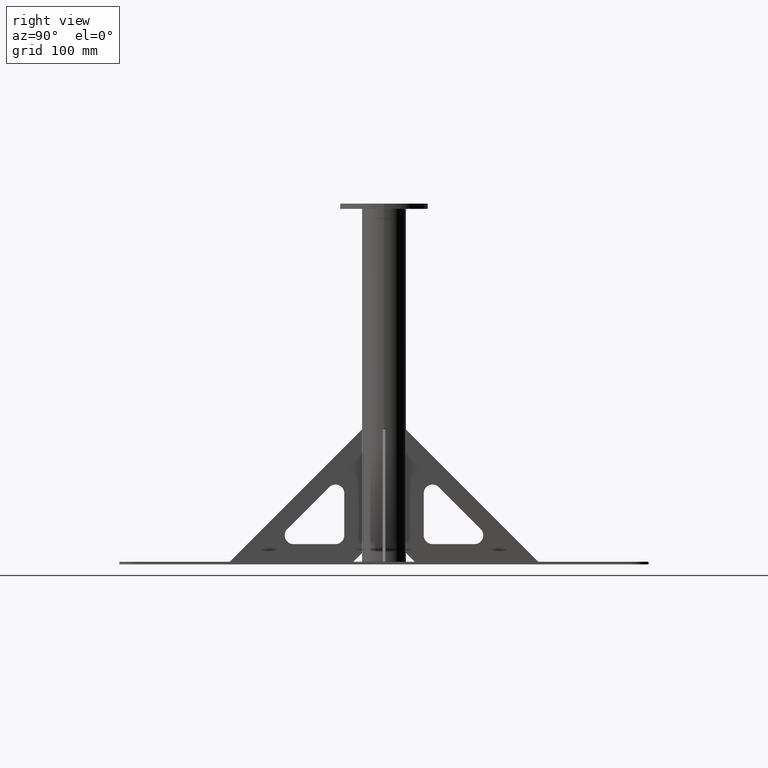
[diagram: clean part render]
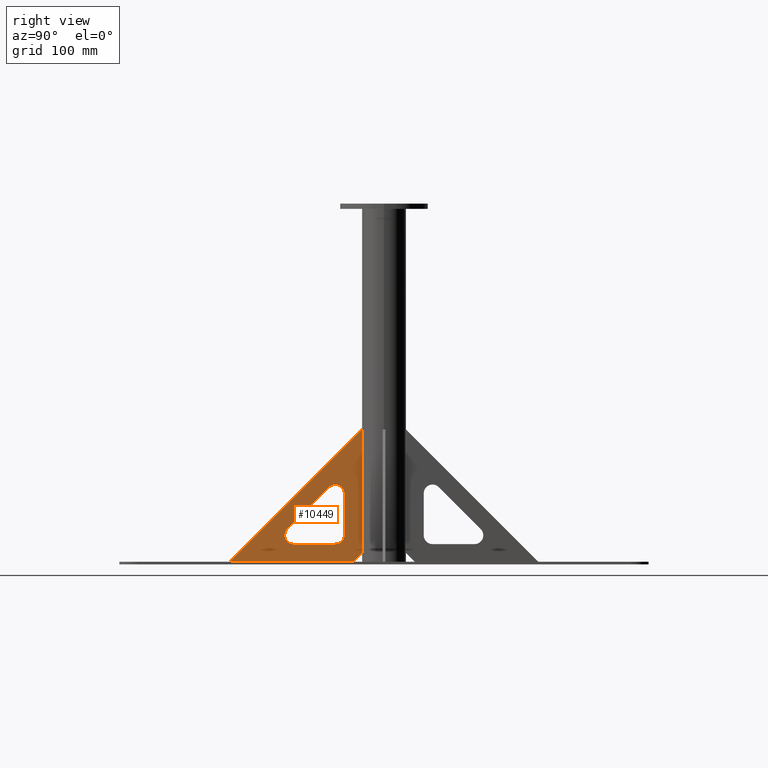
[diagram: same view with one face highlighted and labeled with its STEP entity id]
A machine part, right view. The second image highlights one B-rep face of the part: STEP entity #10449.
In plain terms, the highlighted planar face has unit normal (-1, -0, 0).
Its self-contained STEP definition (entity closure, byte-faithful):
#296 = DIRECTION ( 'NONE',  ( -1.000000000000000000, 0.0000000000000000000, 0.0000000000000000000 ) ) ;
#434 = CARTESIAN_POINT ( 'NONE',  ( 62.42640687119286700, 30.00000000000000000, 0.0000000000000000000 ) ) ;
#882 = VERTEX_POINT ( 'NONE', #434 ) ;
#1189 = CARTESIAN_POINT ( 'NONE',  ( 130.0000000000000000, 30.00000000000000000, 0.0000000000000000000 ) ) ;
#1297 = FACE_BOUND ( 'NONE', #12942, .T. ) ;
#1546 = VERTEX_POINT ( 'NONE', #1189 ) ;
#1605 = EDGE_CURVE ( 'NONE', #9735, #13006, #14702, .T. ) ;
#2069 = AXIS2_PLACEMENT_3D ( 'NONE', #20422, #10320, #296 ) ;
#2304 = ORIENTED_EDGE ( 'NONE', *, *, #20500, .T. ) ;
#2400 = VERTEX_POINT ( 'NONE', #20865 ) ;
#2554 = CARTESIAN_POINT ( 'NONE',  ( 119.9999999999999400, 20.00000000000000000, 0.0000000000000000000 ) ) ;
#2594 = AXIS2_PLACEMENT_3D ( 'NONE', #14999, #4963, #16711 ) ;
#2598 = VECTOR ( 'NONE', #18078, 1000.000000000000100 ) ;
#2680 = EDGE_CURVE ( 'NONE', #2400, #8970, #13401, .T. ) ;
#2916 = VERTEX_POINT ( 'NONE', #17038 ) ;
#3039 = VECTOR ( 'NONE', #11600, 1000.000000000000100 ) ;
#3149 = CARTESIAN_POINT ( 'NONE',  ( 72.42640687119310900, 20.00000000000000000, 0.0000000000000000000 ) ) ;
#3555 = LINE ( 'NONE', #20005, #3039 ) ;
#3584 = CARTESIAN_POINT ( 'NONE',  ( 139.9999999999999700, 0.0000000000000000000, 0.0000000000000000000 ) ) ;
#4317 = ORIENTED_EDGE ( 'NONE', *, *, #9030, .T. ) ;
#4430 = DIRECTION ( 'NONE',  ( 1.000000000000000000, 0.0000000000000000000, -0.0000000000000000000 ) ) ;
#4754 = ORIENTED_EDGE ( 'NONE', *, *, #17911, .F. ) ;
#4963 = DIRECTION ( 'NONE',  ( 0.0000000000000000000, 0.0000000000000000000, 1.000000000000000000 ) ) ;
#5030 = LINE ( 'NONE', #8949, #8458 ) ;
#5031 = EDGE_CURVE ( 'NONE', #6281, #8770, #3555, .T. ) ;
#5181 = AXIS2_PLACEMENT_3D ( 'NONE', #18722, #8641, #20414 ) ;
#5323 = CARTESIAN_POINT ( 'NONE',  ( 65.35533905932756200, 37.07106781186564600, 0.0000000000000000000 ) ) ;
#6281 = VERTEX_POINT ( 'NONE', #19359 ) ;
#6594 = ORIENTED_EDGE ( 'NONE', *, *, #14713, .F. ) ;
#6732 = CIRCLE ( 'NONE', #5181, 10.00000000000000900 ) ;
#6752 = CARTESIAN_POINT ( 'NONE',  ( 130.0000000000000000, 77.57359312880690500, 0.0000000000000000000 ) ) ;
#7016 = EDGE_CURVE ( 'NONE', #8970, #2916, #7047, .T. ) ;
#7046 = LINE ( 'NONE', #20170, #19940 ) ;
#7047 = LINE ( 'NONE', #9589, #2598 ) ;
#7284 = DIRECTION ( 'NONE',  ( 1.000000000000000000, 0.0000000000000000000, 0.0000000000000000000 ) ) ;
#7878 = VERTEX_POINT ( 'NONE', #3584 ) ;
#8054 = CARTESIAN_POINT ( 'NONE',  ( 130.0000000000000000, 30.00000000000007100, 0.0000000000000000000 ) ) ;
#8091 = CARTESIAN_POINT ( 'NONE',  ( 150.0000000000000000, 10.00000000000000000, 0.0000000000000000000 ) ) ;
#8264 = ORIENTED_EDGE ( 'NONE', *, *, #2680, .F. ) ;
#8457 = ORIENTED_EDGE ( 'NONE', *, *, #12773, .T. ) ;
#8458 = VECTOR ( 'NONE', #7284, 1000.000000000000000 ) ;
#8476 = DIRECTION ( 'NONE',  ( 0.7071067811865479100, 0.7071067811865472400, -0.0000000000000000000 ) ) ;
#8641 = DIRECTION ( 'NONE',  ( 0.0000000000000000000, 0.0000000000000000000, 1.000000000000000000 ) ) ;
#8645 = EDGE_CURVE ( 'NONE', #13006, #1546, #18449, .T. ) ;
#8770 = VERTEX_POINT ( 'NONE', #5323 ) ;
#8949 = CARTESIAN_POINT ( 'NONE',  ( 0.0000000000000000000, 0.0000000000000000000, 0.0000000000000000000 ) ) ;
#8970 = VERTEX_POINT ( 'NONE', #14414 ) ;
#9030 = EDGE_CURVE ( 'NONE', #882, #9735, #16034, .T. ) ;
#9391 = ORIENTED_EDGE ( 'NONE', *, *, #5031, .T. ) ;
#9562 = DIRECTION ( 'NONE',  ( 0.0000000000000000000, 0.0000000000000000000, 1.000000000000000000 ) ) ;
#9589 = CARTESIAN_POINT ( 'NONE',  ( 150.0000000000000000, 150.0000000000000000, 0.0000000000000000000 ) ) ;
#9735 = VERTEX_POINT ( 'NONE', #3149 ) ;
#10233 = VECTOR ( 'NONE', #14102, 1000.000000000000000 ) ;
#10320 = DIRECTION ( 'NONE',  ( 0.0000000000000000000, 0.0000000000000000000, 1.000000000000000000 ) ) ;
#10449 = ADVANCED_FACE ( 'NONE', ( #15190, #1297 ), #16092, .F. ) ;
#11107 = EDGE_LOOP ( 'NONE', ( #6594, #19529, #8264, #4754 ) ) ;
#11600 = DIRECTION ( 'NONE',  ( -0.7071067811865474600, -0.7071067811865474600, 0.0000000000000000000 ) ) ;
#12478 = VECTOR ( 'NONE', #13123, 1000.000000000000000 ) ;
#12773 = EDGE_CURVE ( 'NONE', #19538, #6281, #6732, .T. ) ;
#12817 = CARTESIAN_POINT ( 'NONE',  ( 0.0000000000000000000, 0.0000000000000000000, 0.0000000000000000000 ) ) ;
#12942 = EDGE_LOOP ( 'NONE', ( #13243, #4317, #13938, #20933, #2304, #8457, #9391 ) ) ;
#13006 = VERTEX_POINT ( 'NONE', #2554 ) ;
#13123 = DIRECTION ( 'NONE',  ( 0.0000000000000000000, 1.000000000000000000, 0.0000000000000000000 ) ) ;
#13243 = ORIENTED_EDGE ( 'NONE', *, *, #15121, .T. ) ;
#13401 = LINE ( 'NONE', #8091, #17363 ) ;
#13938 = ORIENTED_EDGE ( 'NONE', *, *, #1605, .T. ) ;
#14102 = DIRECTION ( 'NONE',  ( 1.000000000000000000, 0.0000000000000000000, 0.0000000000000000000 ) ) ;
#14414 = CARTESIAN_POINT ( 'NONE',  ( 150.0000000000000000, 150.0000000000000000, 0.0000000000000000000 ) ) ;
#14475 = DIRECTION ( 'NONE',  ( 0.0000000000000000000, 0.0000000000000000000, 1.000000000000000000 ) ) ;
#14702 = LINE ( 'NONE', #20778, #10233 ) ;
#14713 = EDGE_CURVE ( 'NONE', #2916, #7878, #5030, .T. ) ;
#14964 = AXIS2_PLACEMENT_3D ( 'NONE', #12817, #14475, #4430 ) ;
#14977 = CIRCLE ( 'NONE', #2069, 10.00000000000000200 ) ;
#14999 = CARTESIAN_POINT ( 'NONE',  ( 120.0000000000000100, 30.00000000000000000, 0.0000000000000000000 ) ) ;
#15121 = EDGE_CURVE ( 'NONE', #8770, #882, #14977, .T. ) ;
#15190 = FACE_OUTER_BOUND ( 'NONE', #11107, .T. ) ;
#16034 = CIRCLE ( 'NONE', #17949, 10.00000000000000200 ) ;
#16092 = PLANE ( 'NONE',  #14964 ) ;
#16453 = DIRECTION ( 'NONE',  ( 0.0000000000000000000, 1.000000000000000000, 0.0000000000000000000 ) ) ;
#16711 = DIRECTION ( 'NONE',  ( 1.000000000000000000, 0.0000000000000000000, 0.0000000000000000000 ) ) ;
#17038 = CARTESIAN_POINT ( 'NONE',  ( 0.0000000000000000000, 0.0000000000000000000, 0.0000000000000000000 ) ) ;
#17363 = VECTOR ( 'NONE', #16453, 1000.000000000000000 ) ;
#17490 = LINE ( 'NONE', #8054, #12478 ) ;
#17911 = EDGE_CURVE ( 'NONE', #7878, #2400, #7046, .T. ) ;
#17949 = AXIS2_PLACEMENT_3D ( 'NONE', #19657, #9562, #21332 ) ;
#18078 = DIRECTION ( 'NONE',  ( -0.7071067811865474600, -0.7071067811865474600, 0.0000000000000000000 ) ) ;
#18449 = CIRCLE ( 'NONE', #2594, 9.999999999999994700 ) ;
#18722 = CARTESIAN_POINT ( 'NONE',  ( 120.0000000000000000, 77.57359312880714700, 0.0000000000000000000 ) ) ;
#19359 = CARTESIAN_POINT ( 'NONE',  ( 112.9289321881343500, 84.64466094067245200, 0.0000000000000000000 ) ) ;
#19529 = ORIENTED_EDGE ( 'NONE', *, *, #7016, .F. ) ;
#19538 = VERTEX_POINT ( 'NONE', #6752 ) ;
#19657 = CARTESIAN_POINT ( 'NONE',  ( 72.42640687119286700, 30.00000000000000000, 0.0000000000000000000 ) ) ;
#19940 = VECTOR ( 'NONE', #8476, 1000.000000000000000 ) ;
#20005 = CARTESIAN_POINT ( 'NONE',  ( 112.9289321881343500, 84.64466094067243800, 0.0000000000000000000 ) ) ;
#20170 = CARTESIAN_POINT ( 'NONE',  ( 150.0000000000000000, 10.00000000000000000, 0.0000000000000000000 ) ) ;
#20414 = DIRECTION ( 'NONE',  ( 1.000000000000000000, 0.0000000000000000000, 0.0000000000000000000 ) ) ;
#20422 = CARTESIAN_POINT ( 'NONE',  ( 72.42640687119286700, 30.00000000000000000, 0.0000000000000000000 ) ) ;
#20500 = EDGE_CURVE ( 'NONE', #1546, #19538, #17490, .T. ) ;
#20778 = CARTESIAN_POINT ( 'NONE',  ( 72.42640687119310900, 20.00000000000000000, 0.0000000000000000000 ) ) ;
#20865 = CARTESIAN_POINT ( 'NONE',  ( 150.0000000000000000, 10.00000000000000000, 0.0000000000000000000 ) ) ;
#20933 = ORIENTED_EDGE ( 'NONE', *, *, #8645, .T. ) ;
#21332 = DIRECTION ( 'NONE',  ( -1.000000000000000000, 0.0000000000000000000, 0.0000000000000000000 ) ) ;